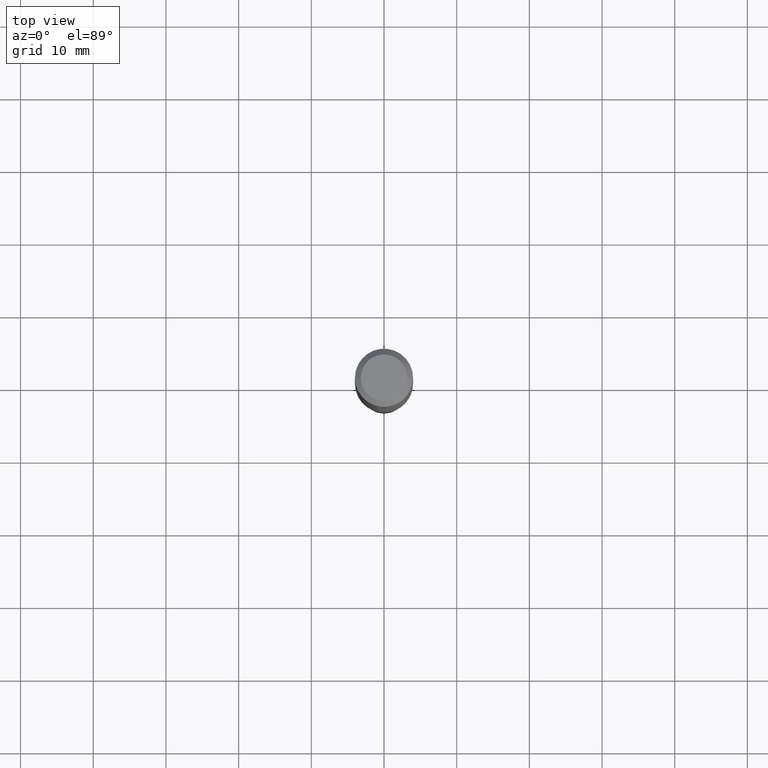
[diagram: clean part render]
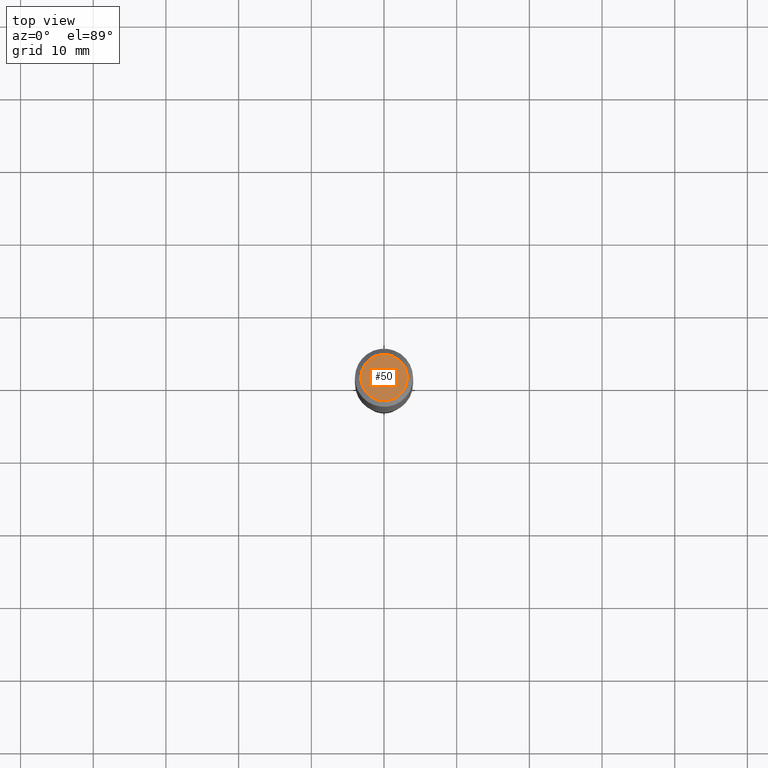
[diagram: same view with one face highlighted and labeled with its STEP entity id]
A machine part, top view. The second image highlights one B-rep face of the part: STEP entity #50.
In plain terms, the highlighted planar face has unit normal (0, -0, -1).
Its self-contained STEP definition (entity closure, byte-faithful):
#23 = EDGE_LOOP ( 'NONE', ( #144, #308 ) ) ;
#50 = ADVANCED_FACE ( 'NONE', ( #152 ), #150, .F. ) ;
#76 = EDGE_CURVE ( 'NONE', #454, #349, #165, .T. ) ;
#119 = DIRECTION ( 'NONE',  ( 1.000000000000000000, -6.982962677686265922E-15, 4.876281427513067258E-29 ) ) ;
#128 = DIRECTION ( 'NONE',  ( -2.445468806185136597E-29, 3.491481338843145583E-15, 1.000000000000000000 ) ) ;
#144 = ORIENTED_EDGE ( 'NONE', *, *, #475, .T. ) ;
#150 = PLANE ( 'NONE',  #499 ) ;
#152 = FACE_OUTER_BOUND ( 'NONE', #23, .T. ) ;
#165 = CIRCLE ( 'NONE', #182, 0.1260000000000000009 ) ;
#182 = AXIS2_PLACEMENT_3D ( 'NONE', #360, #128, #119 ) ;
#276 = CIRCLE ( 'NONE', #363, 0.1260000000000000009 ) ;
#303 = DIRECTION ( 'NONE',  ( -2.445468806185136597E-29, 3.491481338843145583E-15, 1.000000000000000000 ) ) ;
#308 = ORIENTED_EDGE ( 'NONE', *, *, #76, .T. ) ;
#311 = DIRECTION ( 'NONE',  ( 2.438088387897960049E-29, -3.491481338843145188E-15, -1.000000000000000000 ) ) ;
#341 = CARTESIAN_POINT ( 'NONE',  ( -9.439721640706193907E-47, 1.347742071746725396E-32, 3.860086710912455880E-18 ) ) ;
#349 = VERTEX_POINT ( 'NONE', #408 ) ;
#360 = CARTESIAN_POINT ( 'NONE',  ( -9.439721640706193907E-47, 1.347742071746725396E-32, 3.860086710912455880E-18 ) ) ;
#363 = AXIS2_PLACEMENT_3D ( 'NONE', #341, #303, #463 ) ;
#383 = CARTESIAN_POINT ( 'NONE',  ( -4.719860820353096954E-47, 6.738710358733626979E-33, 1.930043355456227940E-18 ) ) ;
#408 = CARTESIAN_POINT ( 'NONE',  ( -0.1260000000000000009, 9.348441284752482932E-16, 3.860086710906110326E-18 ) ) ;
#433 = CARTESIAN_POINT ( 'NONE',  ( 0.1260000000000000009, -1.027466422270894640E-15, 3.860086710919124220E-18 ) ) ;
#454 = VERTEX_POINT ( 'NONE', #433 ) ;
#463 = DIRECTION ( 'NONE',  ( 1.000000000000000000, -6.982962677686265922E-15, 4.876281427513067258E-29 ) ) ;
#468 = DIRECTION ( 'NONE',  ( -1.000000000000000000, 6.982962677686265922E-15, -4.876176775795935793E-29 ) ) ;
#475 = EDGE_CURVE ( 'NONE', #349, #454, #276, .T. ) ;
#499 = AXIS2_PLACEMENT_3D ( 'NONE', #383, #311, #468 ) ;